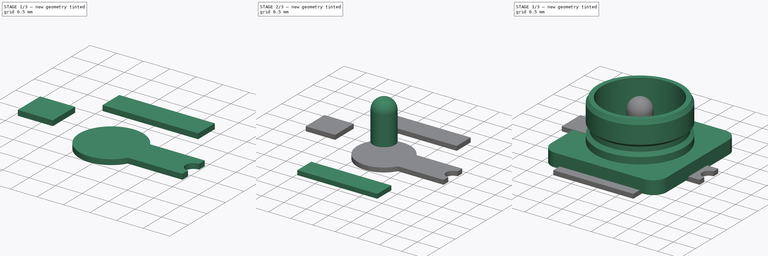
[diagram: build sequence overview — one tinted view per stage of 3, left to right]
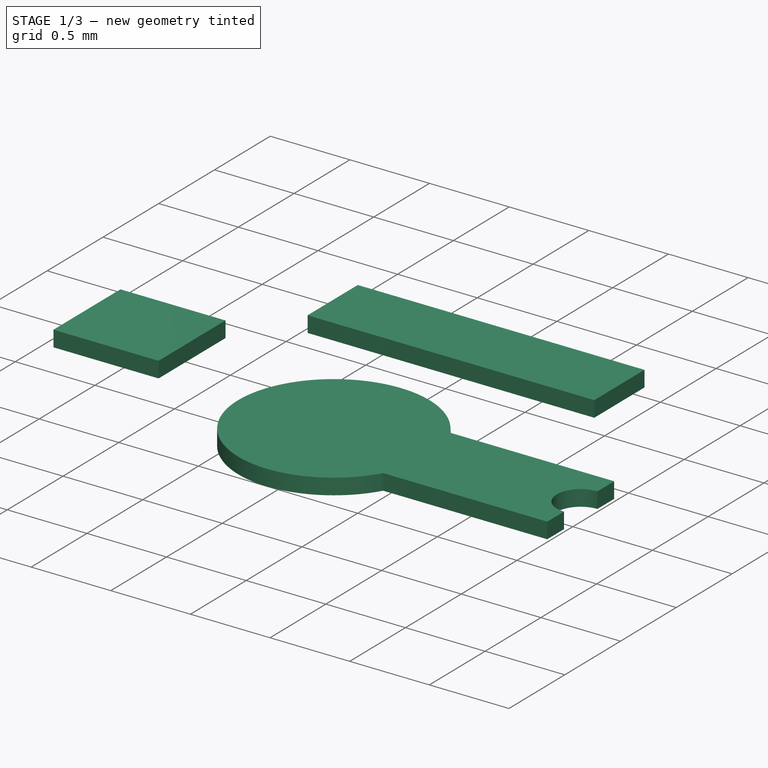
[diagram: stage 1 of 3 — iso view after this stage's code; geometry added in this stage tinted green]
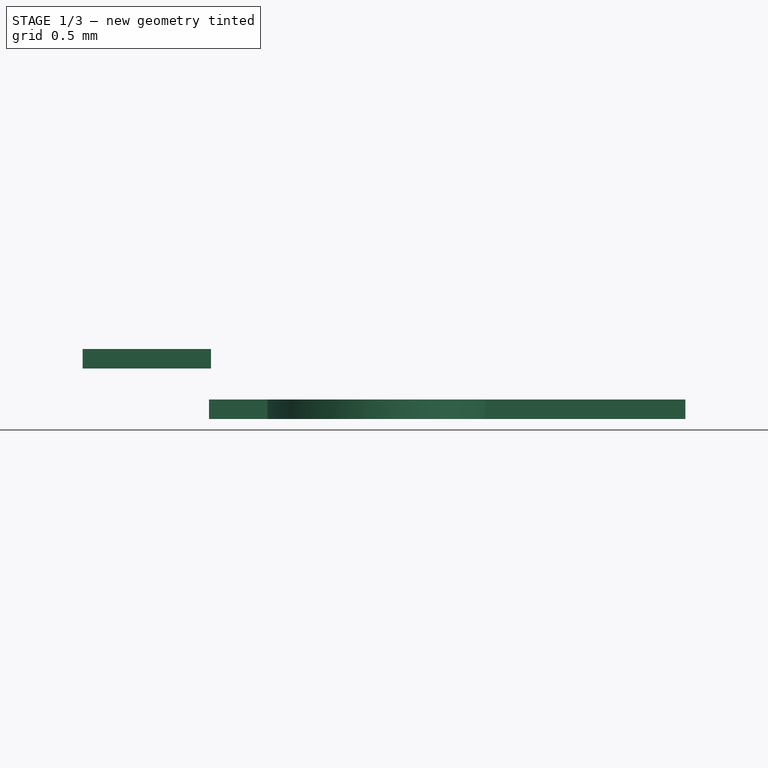
[diagram: stage 1 of 3 — front view after this stage's code; geometry added in this stage tinted green]
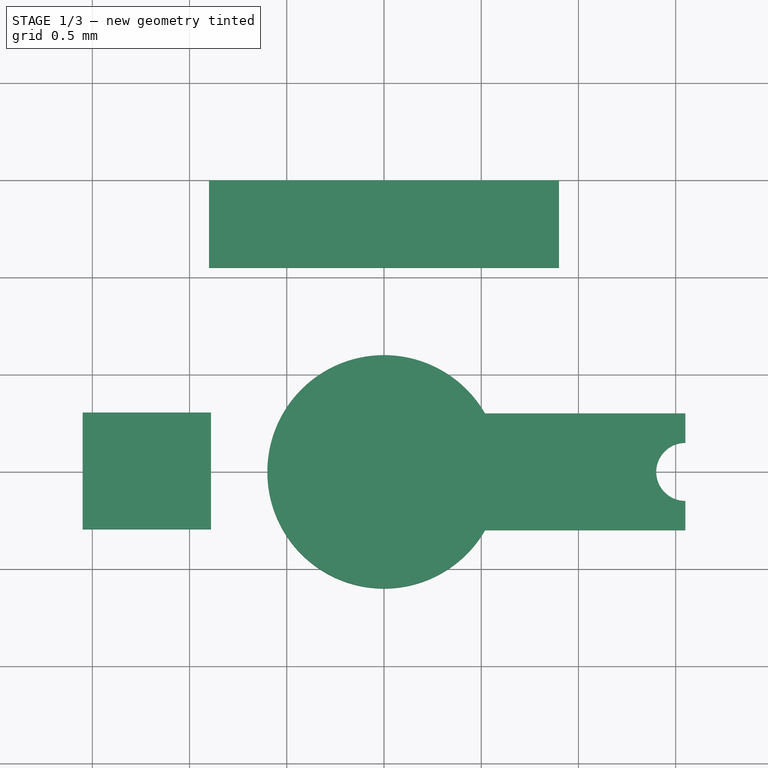
[diagram: stage 1 of 3 — top view after this stage's code; geometry added in this stage tinted green]
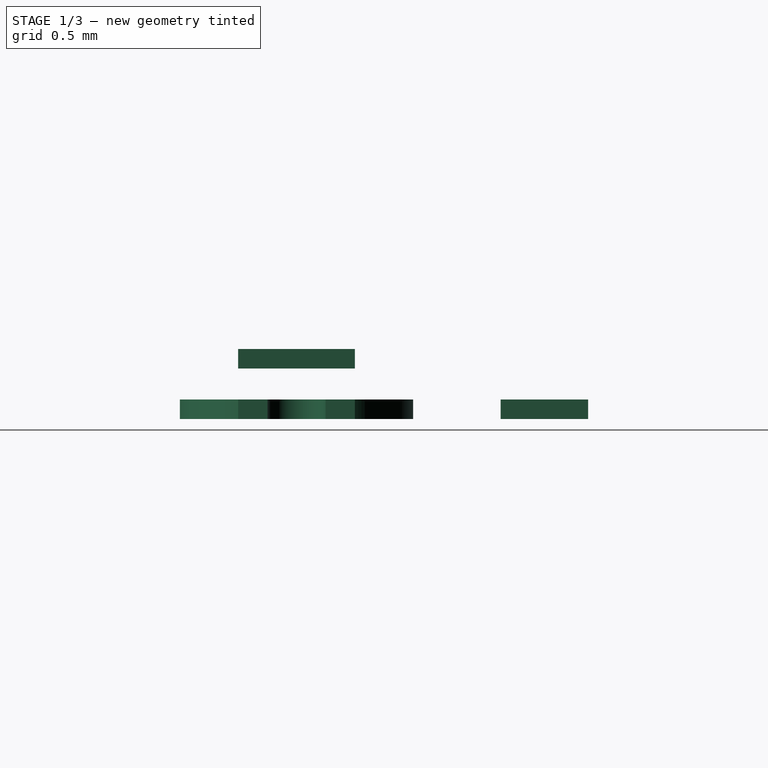
[diagram: stage 1 of 3 — right view after this stage's code; geometry added in this stage tinted green]
FCSTD DOCUMENT  (FreeCAD 0.16R6706 (Git))
Label: IPEX_PCB
License: All rights reserved
LicenseURL: http://en.wikipedia.org/wiki/All_rights_reserved
objects: Sketcher::SketchObject×4, PartDesign::Pad×2, PartDesign::Revolution×2, Part::Box×2, Part::FeaturePython×1, Part::MultiFuse×1
note: 16 computed .brp shape members not serialized (recipe doc carries the construction recipe); baked Part::Feature solids carry a one-line shape summary decoded from their .brp

FEATURE [Part::Box] Box  label="ground-pin"
  Height = 0.1
  Length = 1.8
  Placement = pos=(-0.9,1.05,0) rot=(0,0,1;0rad)
  Width = 0.45
FEATURE [Sketcher::SketchObject] Sketch003
  sketch-geometry (6):
    g0: LineSegment StartX=1.55 StartY=0.3 StartZ=0 EndX=0.519615 EndY=0.3 EndZ=0
    g1: LineSegment StartX=0.519615 StartY=-0.3 StartZ=0 EndX=1.55 EndY=-0.3 EndZ=0
    g2: LineSegment StartX=1.55 StartY=-0.3 StartZ=0 EndX=1.55 EndY=-0.15 EndZ=0
    g3: ArcOfCircle CenterX=1.55 CenterY=0 CenterZ=0 NormalX=0 NormalY=0 NormalZ=1 Radius=0.15 StartAngle=1.5708 EndAngle=4.71239
    g4: LineSegment StartX=1.55 StartY=0.15 StartZ=0 EndX=1.55 EndY=0.3 EndZ=0
    g5: ArcOfCircle CenterX=0 CenterY=0 CenterZ=0 NormalX=0 NormalY=0 NormalZ=1 Radius=0.6 StartAngle=0.523599 EndAngle=5.75959
  constraints (10):
    c: Coincident(g1,g2)
    c: Coincident(g4,g0)
    c: Horizontal(g0)
    c: Horizontal(g1)
    c: Vertical(g2)
    c: Tangent(g2,g4)
    c: Coincident(g3,g4)
    c: Coincident(g3,g2)
    c: Coincident(g5,g0)
    c: Coincident(g5,g1)
FEATURE [PartDesign::Pad] Pad001  label="signal_pin"
  Length = 0.1
  Length2 = 100
  Sketch = -> Sketch003
  Type = 0
FEATURE [Part::Box] Box001  label="ground_pin2"
  Height = 0.1
  Length = 0.66
  Placement = pos=(-1.55,-0.3,0.26) rot=(0,0,1;0rad)
  Width = 0.6
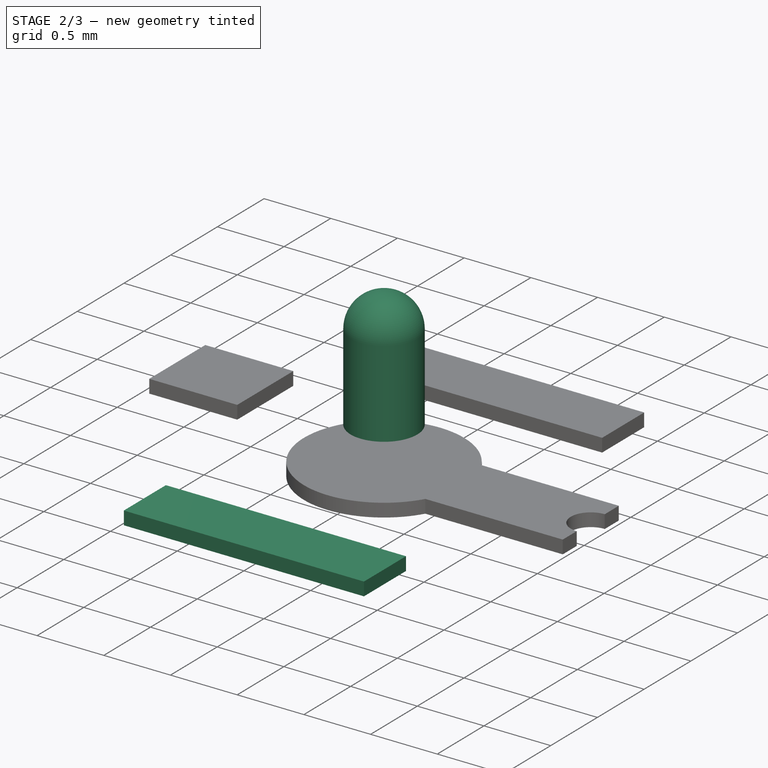
[diagram: stage 2 of 3 — iso view after this stage's code; geometry added in this stage tinted green]
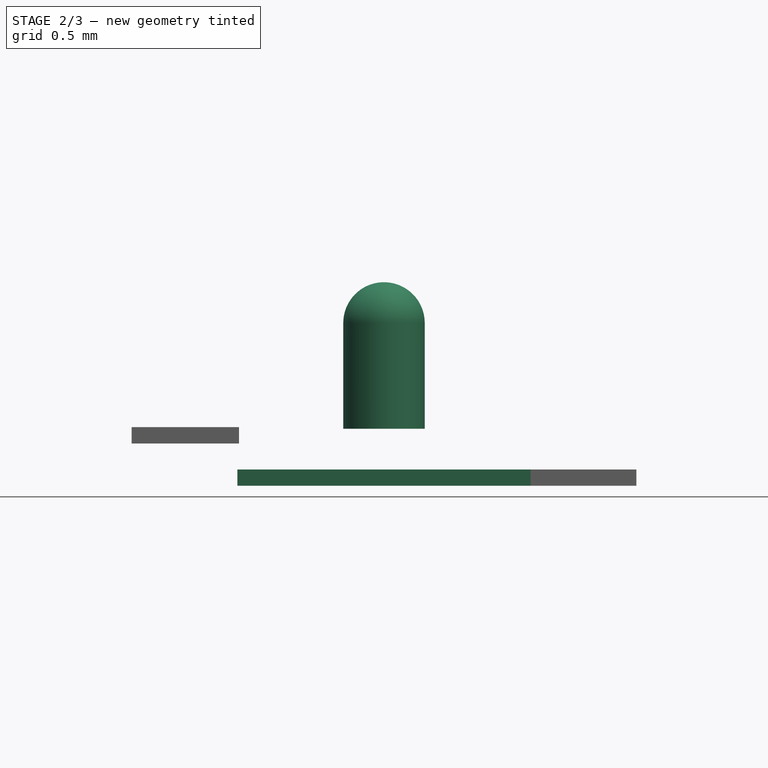
[diagram: stage 2 of 3 — front view after this stage's code; geometry added in this stage tinted green]
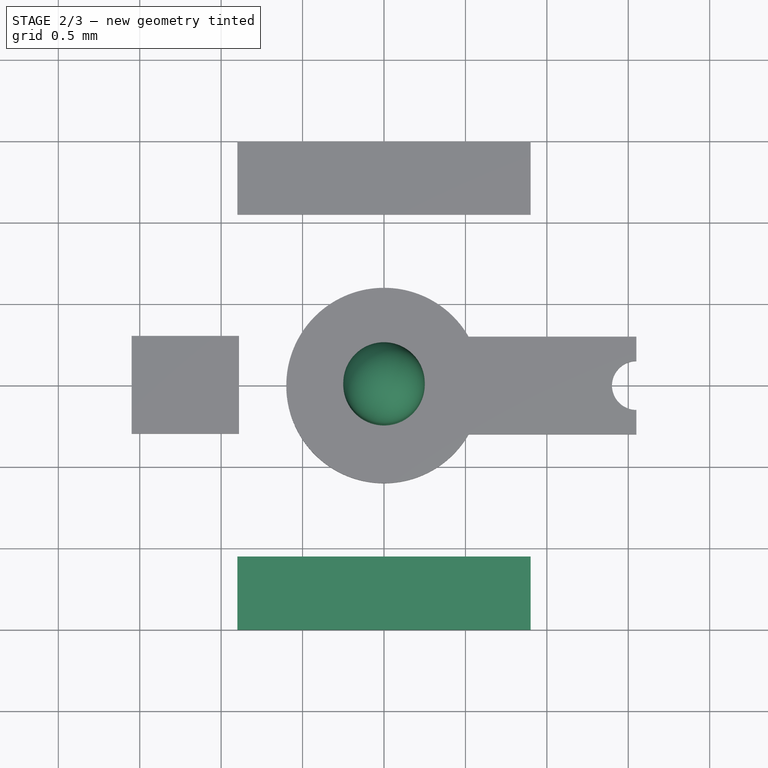
[diagram: stage 2 of 3 — top view after this stage's code; geometry added in this stage tinted green]
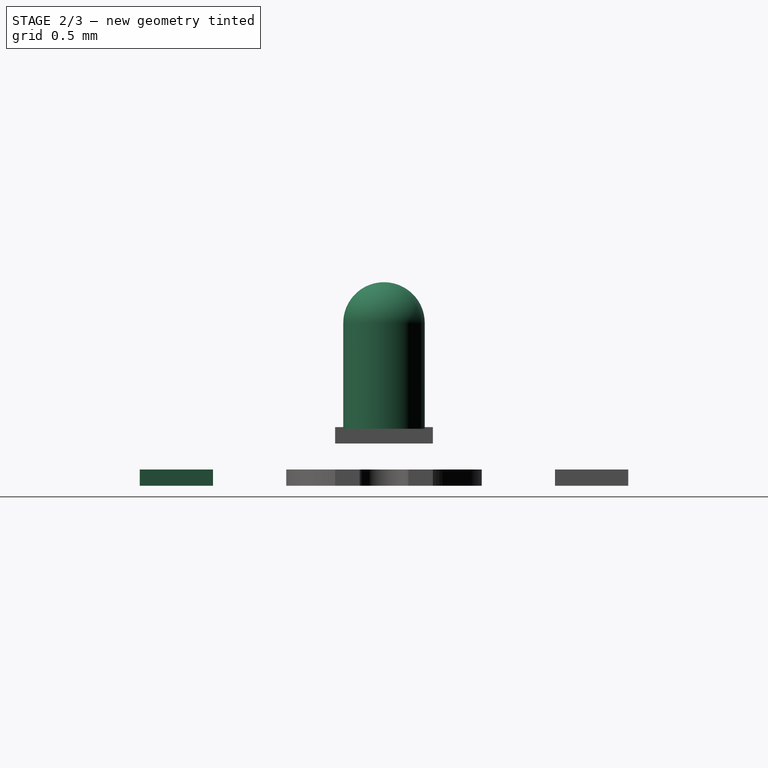
[diagram: stage 2 of 3 — right view after this stage's code; geometry added in this stage tinted green]
FEATURE [Sketcher::SketchObject] Sketch002
  Placement = pos=(0,0,0) rot=(-1,0,0;4.71239rad)
  sketch-geometry (4):
    g0: LineSegment StartX=-0.25 StartY=0.35 StartZ=0 EndX=0 EndY=0.35 EndZ=0
    g1: LineSegment StartX=0 StartY=0.35 StartZ=0 EndX=0 EndY=1.25 EndZ=0
    g2: LineSegment StartX=-0.25 StartY=1 StartZ=0 EndX=-0.25 EndY=0.35 EndZ=0
    g3: ArcOfCircle CenterX=0 CenterY=1 CenterZ=0 NormalX=0 NormalY=0 NormalZ=1 Radius=0.25 StartAngle=1.5708 EndAngle=3.14159
  constraints (7):
    c: Coincident(g0,g1)
    c: Coincident(g2,g0)
    c: Horizontal(g0)
    c: Vertical(g1)
    c: Vertical(g2)
    c: PointOnObject(g3,g1)
    c: Coincident(g3,g2)
FEATURE [PartDesign::Revolution] Revolution001
  Angle = 360
  Axis = (0,0,1)
  Base = (0,0,0)
  Placement = pos=(0,0,0) rot=(-1,0,0;4.71239rad)
  ReferenceAxis = -> Sketch002 [V_Axis]
  Sketch = -> Sketch002
FEATURE [Part::FeaturePython] Array  label="ground_pins"  # Draft array (typed FeaturePython)
  Angle = 360
  ArrayType = 1
  Axis = (0,0,1)
  Base = -> Box
  Center = (0,0,0)
  Fuse = false
  IntervalAxis = (0,0,0)
  IntervalX = (1,0,0)
  IntervalY = (0,1,0)
  IntervalZ = (0,0,0)
  NumberPolar = 2
  NumberX = 1
  NumberY = 1
  NumberZ = 1
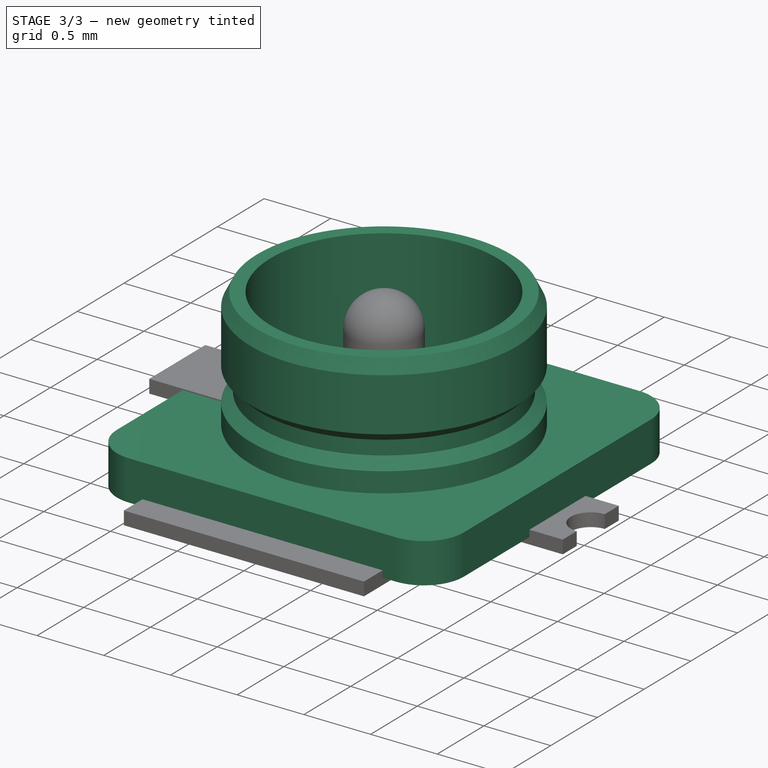
[diagram: stage 3 of 3 — iso view after this stage's code; geometry added in this stage tinted green]
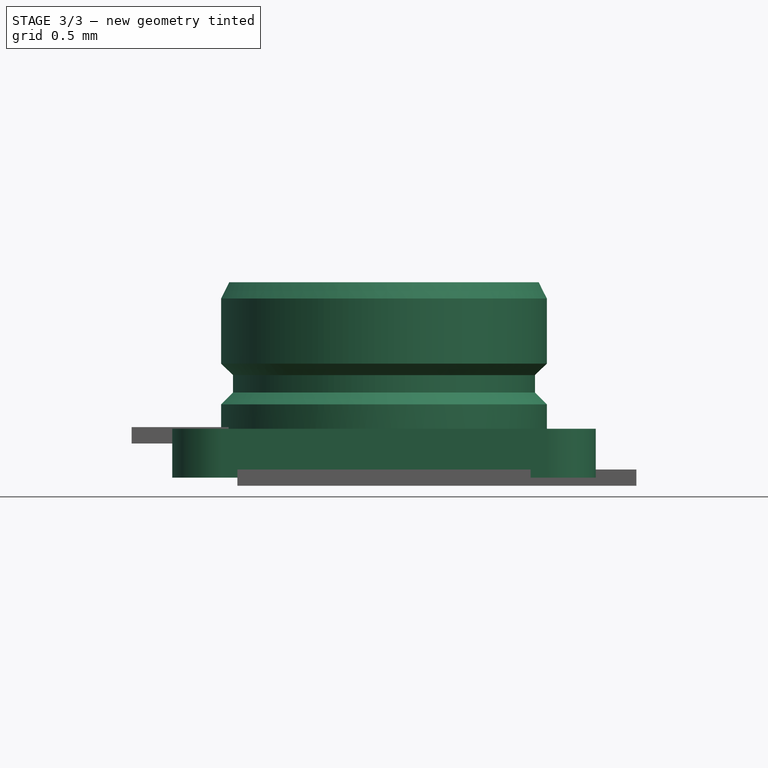
[diagram: stage 3 of 3 — front view after this stage's code; geometry added in this stage tinted green]
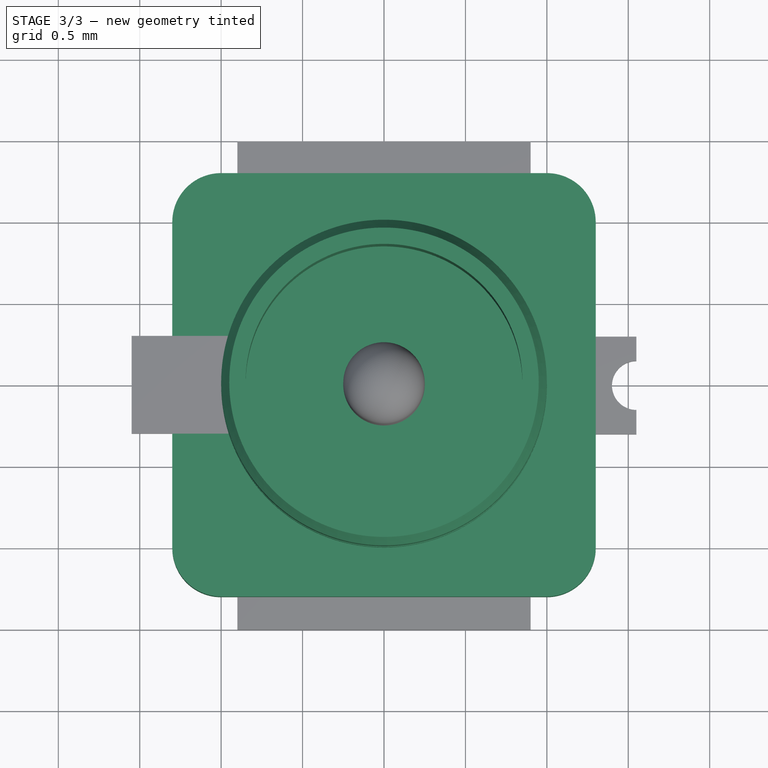
[diagram: stage 3 of 3 — top view after this stage's code; geometry added in this stage tinted green]
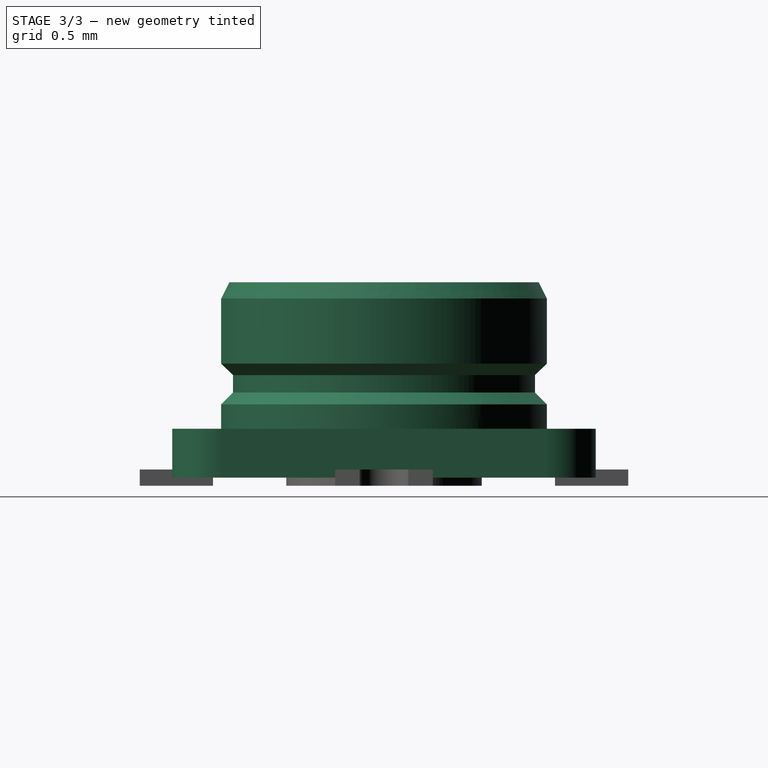
[diagram: stage 3 of 3 — right view after this stage's code; geometry added in this stage tinted green]
FEATURE [Sketcher::SketchObject] Sketch
  Placement = pos=(0,0,0.05) rot=(0,0,1;0rad)
  sketch-geometry (8):
    g0: LineSegment StartX=-1 StartY=-1.3 StartZ=0 EndX=1 EndY=-1.3 EndZ=0
    g1: LineSegment StartX=1.3 StartY=-1 StartZ=0 EndX=1.3 EndY=1 EndZ=0
    g2: LineSegment StartX=1 StartY=1.3 StartZ=0 EndX=-1 EndY=1.3 EndZ=0
    g3: LineSegment StartX=-1.3 StartY=1 StartZ=0 EndX=-1.3 EndY=-1 EndZ=0
    g4: ArcOfCircle CenterX=-1 CenterY=1 CenterZ=0 NormalX=0 NormalY=0 NormalZ=1 Radius=0.3 StartAngle=1.5708 EndAngle=3.14159
    g5: ArcOfCircle CenterX=1 CenterY=1 CenterZ=0 NormalX=0 NormalY=0 NormalZ=1 Radius=0.3 StartAngle=0 EndAngle=1.5708
    g6: ArcOfCircle CenterX=1 CenterY=-1 CenterZ=0 NormalX=0 NormalY=0 NormalZ=1 Radius=0.3 StartAngle=4.71239 EndAngle=6.28319
    g7: ArcOfCircle CenterX=-1 CenterY=-1 CenterZ=0 NormalX=0 NormalY=0 NormalZ=1 Radius=0.3 StartAngle=3.14159 EndAngle=4.71239
  constraints (12):
    c: Horizontal(g0)
    c: Horizontal(g2)
    c: Vertical(g1)
    c: Vertical(g3)
    c: Tangent(g3,g4) = -1.5708
    c: Tangent(g2,g4) = -1.5708
    c: Tangent(g2,g5) = -1.5708
    c: Tangent(g1,g5) = -1.5708
    c: Tangent(g0,g6) = -1.5708
    c: Tangent(g1,g6) = -1.5708
    c: Tangent(g0,g7) = -1.5708
    c: Tangent(g3,g7) = -1.5708
FEATURE [PartDesign::Pad] Pad  label="body"
  Length = 0.3
  Length2 = 100
  Placement = pos=(0,0,0.05) rot=(0,0,1;0rad)
  Sketch = -> Sketch
  Type = 0
FEATURE [Sketcher::SketchObject] Sketch001
  Placement = pos=(0,0,0) rot=(-1,0,0;4.71239rad)
  sketch-geometry (9):
    g0: LineSegment StartX=-1 StartY=0.35 StartZ=0 EndX=-1 EndY=0.5 EndZ=0
    g1: LineSegment StartX=-0.95 StartY=1.25 StartZ=0 EndX=-0.85 EndY=1.25 EndZ=0
    g2: LineSegment StartX=-0.85 StartY=1.25 StartZ=0 EndX=-0.85 EndY=0.35 EndZ=0
    g3: LineSegment StartX=-0.85 StartY=0.35 StartZ=0 EndX=-1 EndY=0.35 EndZ=0
    g4: LineSegment StartX=-0.95 StartY=1.25 StartZ=0 EndX=-1 EndY=1.15 EndZ=0
    g5: LineSegment StartX=-1 StartY=0.5 StartZ=0 EndX=-0.927252 EndY=0.573186 EndZ=0
    g6: LineSegment StartX=-0.927252 StartY=0.573186 StartZ=0 EndX=-0.927252 EndY=0.679793 EndZ=0
    g7: LineSegment StartX=-0.927252 StartY=0.679793 StartZ=0 EndX=-1 EndY=0.75 EndZ=0
    g8: LineSegment StartX=-1 StartY=0.75 StartZ=0 EndX=-1 EndY=1.15 EndZ=0
  constraints (11):
    c: Coincident(g1,g2)
    c: Coincident(g2,g3)
    c: Coincident(g3,g0)
    c: PointOnObject(g1,g4)
    c: PointOnObject(g8,g4)
    c: Coincident(g5,g6)
    c: Coincident(g6,g7)
    c: PointOnObject(g0,g5)
    c: PointOnObject(g8,g7)
    c: Tangent(g0,g8)
    c: Vertical(g6)
FEATURE [PartDesign::Revolution] Revolution
  Angle = 360
  Axis = (0,0,1)
  Base = (0,0,0)
  Placement = pos=(0,0,0) rot=(-1,0,0;4.71239rad)
  ReferenceAxis = -> Sketch001 [V_Axis]
  Sketch = -> Sketch001
FEATURE [Part::MultiFuse] Fusion
  Shapes = -> [Pad,Revolution001,Revolution,Box001,Pad001,Array]
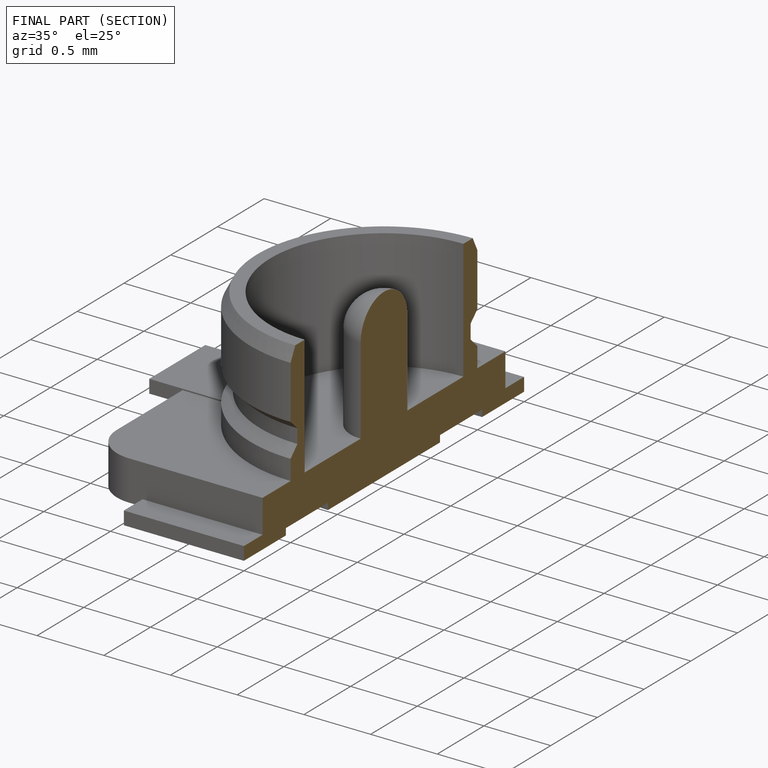
[diagram: finished part — half-section view (interior)]
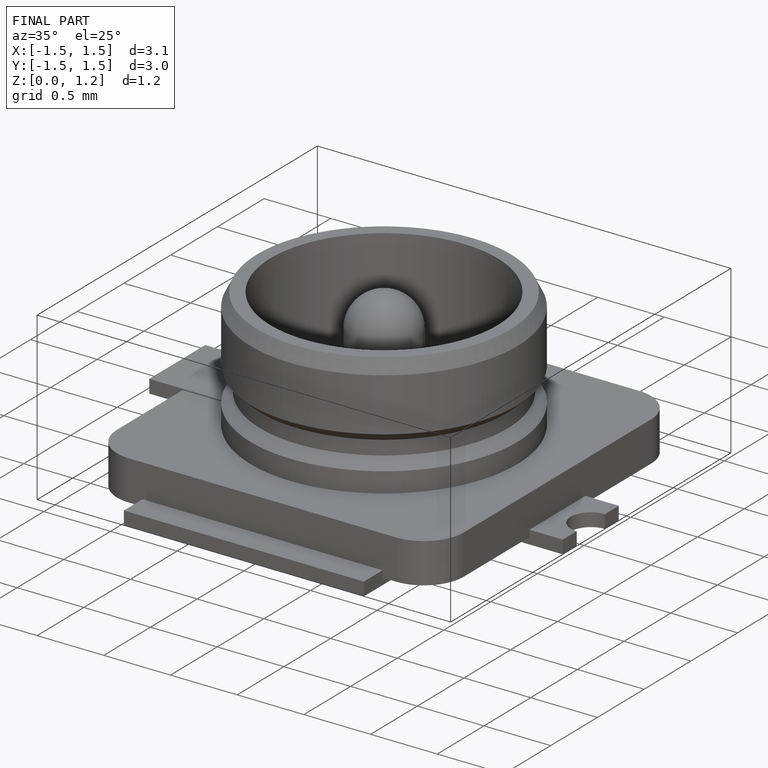
[diagram: finished part — iso view with bounding-box wireframe]
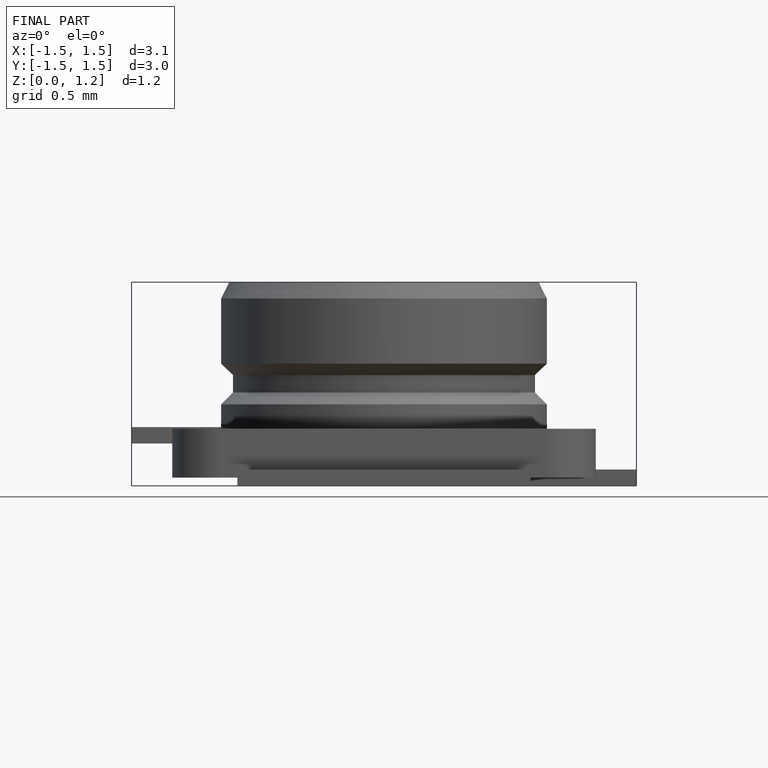
[diagram: finished part — front view with bounding-box wireframe]
